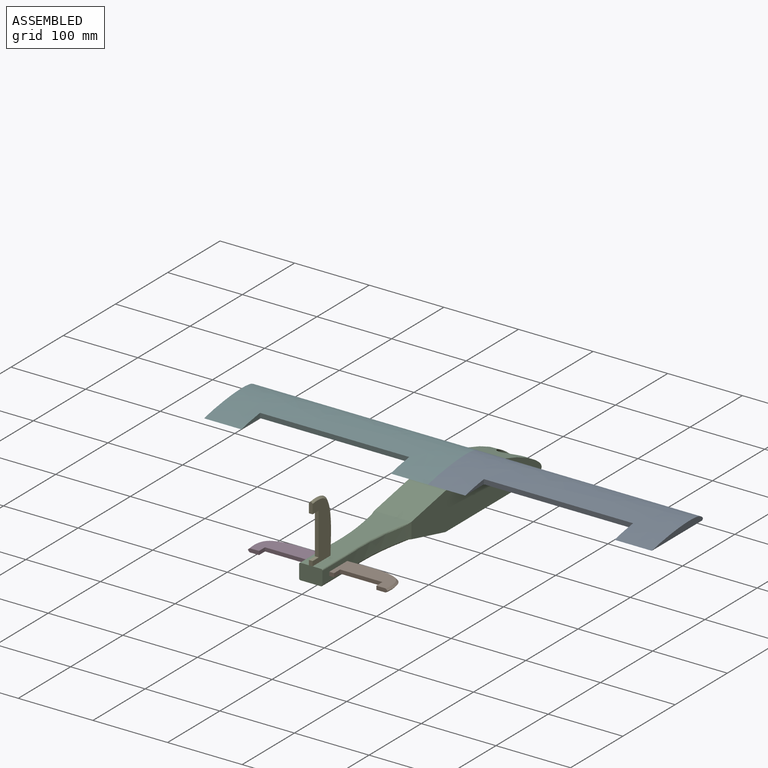
[diagram: assembled view]
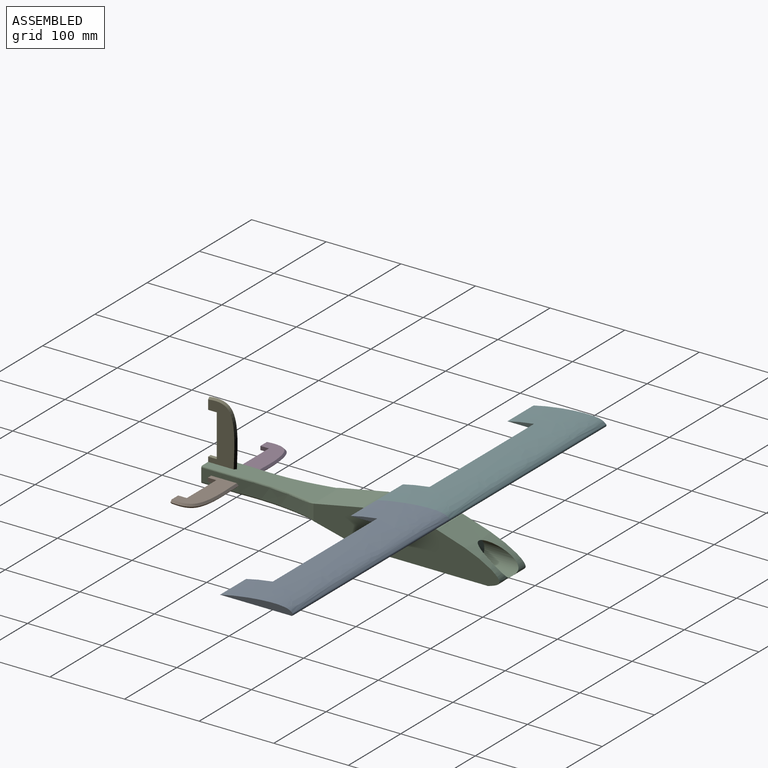
[diagram: assembled view, second angle]
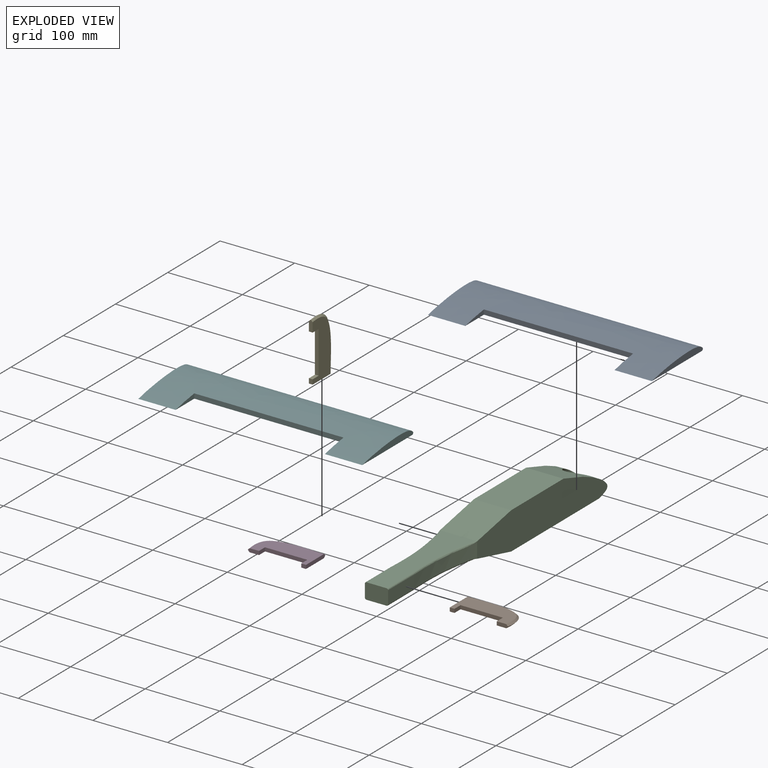
[diagram: exploded view]
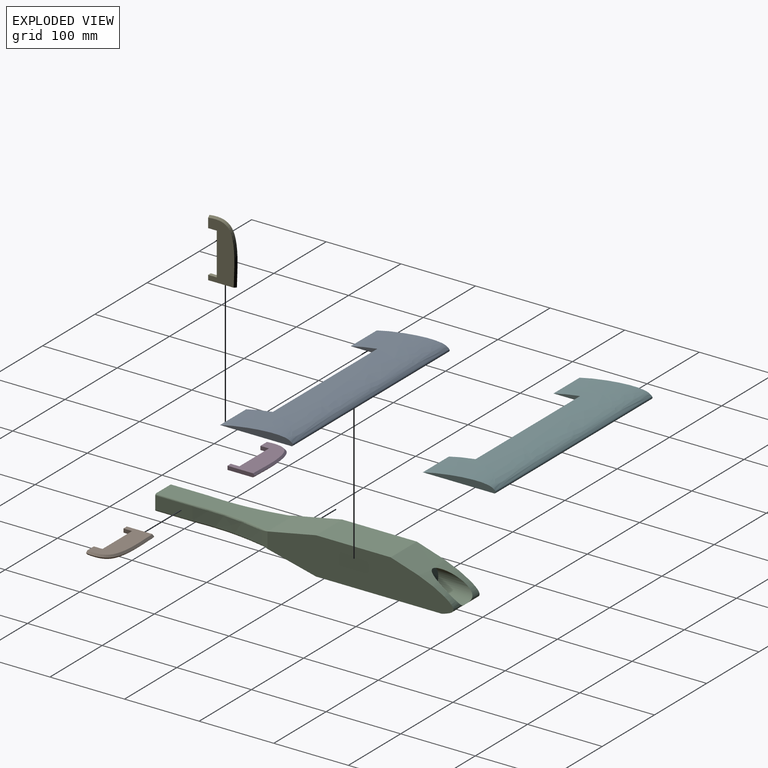
[diagram: exploded view, second angle]
ASSEMBLY  parts=6 mates=5
PART A: 8 faces, bbox 100x300x12.1 mm
  f0: extruded ~300x97.14mm, area 22489.7mm2, adj f1,f2,f3,f4,f5,f6,f7
  f1: plane 300x95.71mm, normal (0,0,-1), area 21570.5mm2, adj f0,f2,f3,f4,f5,f6,f7
  f2: plane 100x12.09mm, normal (0,-1,0), area 619.4mm2, adj f0,f1,f4
  f3: plane 100x12.09mm, normal (0,1,0), area 619.4mm2, adj f0,f1,f4
  f4: cylinder r=2mm len=300mm, axis (0,1,0), area 1407.1mm2, adj f0,f1,f2,f3
  f5: plane 36.2x6.86mm, normal (0,1,0), area 126.1mm2, adj f0,f1,f7
  f6: plane 36.2x6.86mm, normal (0,-1,0), area 126.1mm2, adj f0,f1,f7
  f7: plane 200x6.37mm, normal (-1,0,0), area 1273.4mm2, adj f0,f1,f5,f6
PART B: 10 faces, bbox 7.2x40.2x81.1 mm
  f0: plane 15.08x5mm, normal (0,-1,0), area 69.1mm2, adj f1,f6,f7,f8,f9
  f1: plane 11.55x5mm, normal (0,0,-1), area 57.7mm2, adj f0,f2,f6,f7
  f2: plane 56.64x5mm, normal (0,-1,0), area 283.2mm2, adj f1,f3,f6,f7
  f3: plane 11.55x5mm, normal (0,0,1), area 57.7mm2, adj f2,f4,f6,f7
  f4: plane 6.39x5mm, normal (0,-1,0), area 31.9mm2, adj f3,f5,f6,f7
  f5: plane 36.79x5mm, normal (0,0,-1), area 177.7mm2, adj f4,f6,f7,f8,f9
  f6: plane 78.62x37.39mm, normal (1,0,0), area 1897.9mm2, adj f0,f1,f2,f3,f4,f5,f8
  f7: plane 78.67x37.45mm, normal (-1,0,0), area 1898.6mm2, adj f0,f1,f2,f3,f4,f5,f9
  f8: bspline ~78.87x38.02mm, area 362.1mm2, adj f0,f5,f6,f9
  f9: bspline ~78.87x38.02mm, area 362.1mm2, adj f0,f5,f7,f8
PART C: 24 faces, bbox 52.1x408.8x51.5 mm
  f0: extruded ~84.06x50mm, area 4241.9mm2, adj f4,f5,f7,f8,f22
  f1: plane 156.97x45.92mm, normal (0,0,1), area 4699.3mm2, adj f6,f13,f14,f17,f18,f21
  f2: plane 156.97x45.92mm, normal (0,0,-1), area 4699.3mm2, adj f3,f11,f12,f15,f20,f21
  f3: plane 74.67x51.45mm, normal (0,-0.24,-0.97), area 3361.5mm2, adj f2,f4,f7,f8,f9,f10,f11,f12
  f4: plane 168.68x50mm, normal (0,0,-1), area 8434.1mm2, adj f0,f3,f7,f8
  f5: plane 100x50mm, normal (0,0,1), area 5000mm2, adj f0,f6,f7,f8
  f6: plane 76.82x51.46mm, normal (0,-0.19,0.98), area 3327mm2, adj f1,f5,f7,f8,f9,f10,f13,f14
  f7: plane 250.42x50mm, normal (1,0,0), area 10190.8mm2, adj f0,f3,f4,f5,f6,f9
  f8: plane 250.42x50mm, normal (-1,0,0), area 10190.8mm2, adj f0,f3,f4,f5,f6,f10
  f9: extruded ~106.97x21.18mm, area 1870.7mm2, adj f3,f6,f7,f11,f13,f16
  f10: extruded ~106.97x21.18mm, area 1870.7mm2, adj f3,f6,f8,f12,f14,f19
  f11: bspline ~110.64x12.4mm, area 325.4mm2, adj f2,f3,f9,f15
  f12: bspline ~110.65x12.4mm, area 325.3mm2, adj f2,f3,f10,f20
  f13: bspline ~110.64x12.4mm, area 321.9mm2, adj f1,f6,f9,f17
  f14: bspline ~110.65x12.4mm, area 321.9mm2, adj f1,f6,f10,f18
  f15: extruded ~50x2mm, area 157.2mm2, adj f2,f11,f16,f21
  f16: plane 50x17.18mm, normal (1,0,0), area 859.1mm2, adj f9,f15,f17,f21
  f17: extruded ~50x2mm, area 157.2mm2, adj f1,f13,f16,f21
  f18: extruded ~50x2mm, area 157.2mm2, adj f1,f14,f19,f21
  f19: plane 50x17.18mm, normal (-1,0,0), area 859.1mm2, adj f10,f18,f20,f21
  f20: extruded ~50x2mm, area 157.2mm2, adj f2,f12,f19,f21
  f21: plane 31.21x21.19mm, normal (0,-1,0), area 657.6mm2, adj f1,f2,f15,f16,f17,f18,f19,f20
  f22: cylinder r=16.06mm len=49.07mm, axis (0,1,0), area 3206.1mm2, adj f0,f23
  f23: plane 32.11x32.11mm, normal (0,1,0), area 809.9mm2, adj f22
PART D: same geometry as B
PART E: same geometry as B
PART F: same geometry as A
PLACE A rot(axis=(0,0,1),90deg) t=(175,105.45,50)mm
PLACE B rot(axis=(0,1,0),90deg) t=(40.6,-168.79,29.18)mm
PLACE C t=(25,3.3,0)mm
PLACE D rot(axis=(0,-1,0),90deg) t=(9.4,-168.79,24.18)mm
PLACE E t=(22.5,-182,37.27)mm
PLACE F rot(axis=(0,0,1),90deg) t=(-125,105.45,50)mm
MATE fastened E.f5 <-> C.f1  axis (0,0,-1) through (25,-218.79,37.27)mm
MATE fastened A.f4 <-> F.f4  axis (-1,0,0) through (25,101.15,52)mm
MATE fastened A.f1 <-> C.f5  axis (0,0,-1) through (25,53.3,50)mm
MATE fastened D.f5 <-> C.f19  axis (-1,0,0) through (9.4,-168.79,26.68)mm
MATE fastened B.f5 <-> C.f16  axis (1,0,0) through (40.6,-168.79,26.68)mm
